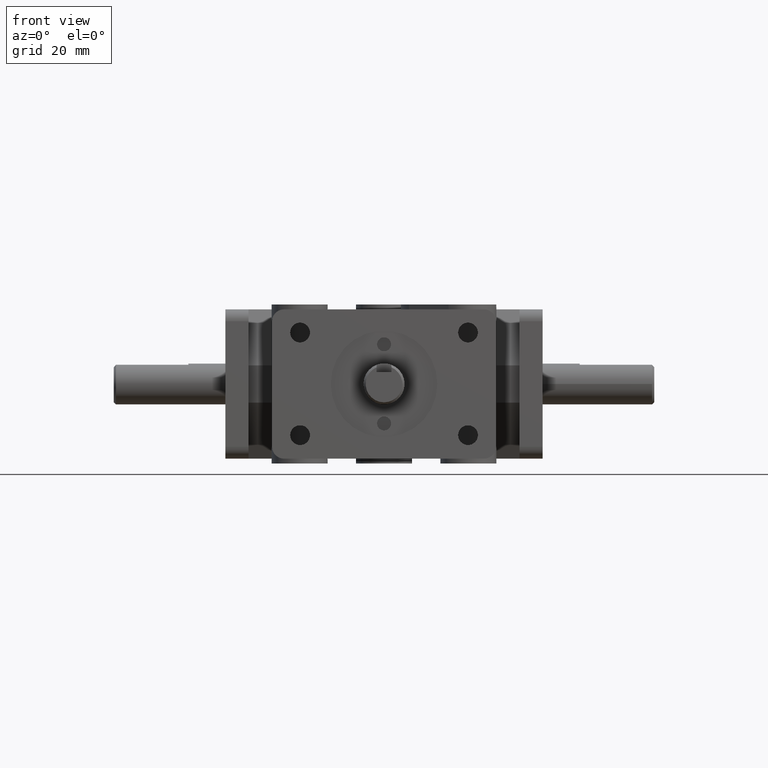
[diagram: clean part render]
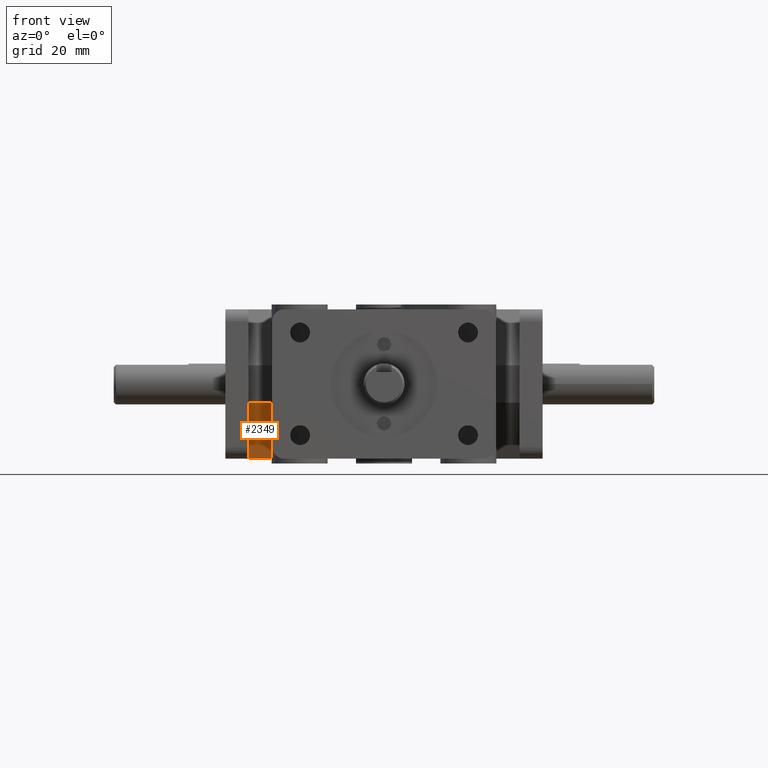
[diagram: same view with one face highlighted and labeled with its STEP entity id]
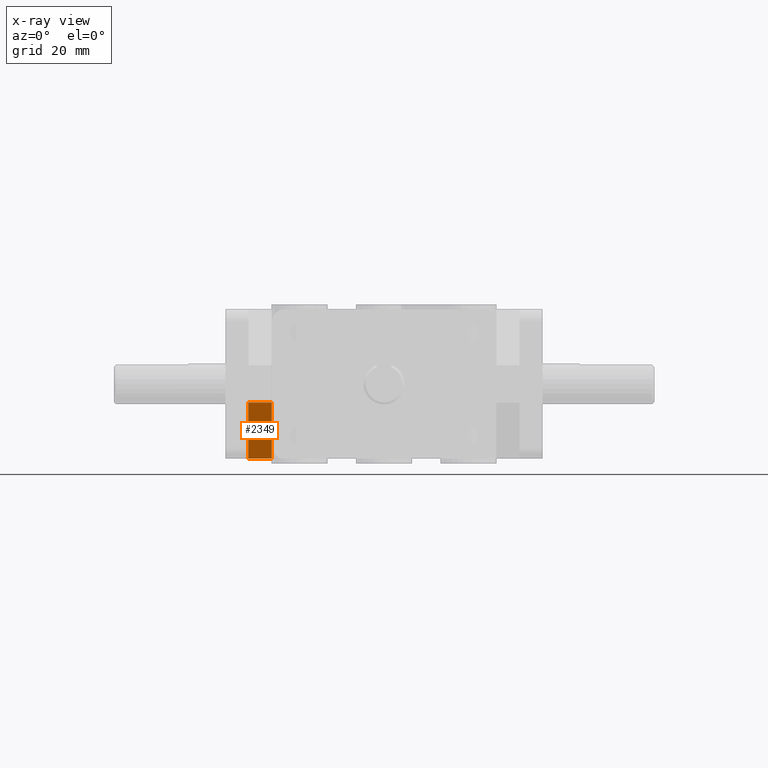
[diagram: x-ray of the same camera — body ghosted, the highlighted face saturated]
A machine part, front view. The second image highlights one B-rep face of the part: STEP entity #2349.
The next image is the same camera in x-ray: the body ghosted, the highlighted face saturated — about 0% of this face is hidden behind the body in this view.
In plain terms, the highlighted planar face has unit normal (0, -0.866, -0.5).
Its self-contained STEP definition (entity closure, byte-faithful):
#108=PLANE('',#2585);
#230=FACE_OUTER_BOUND('',#382,.T.);
#382=EDGE_LOOP('',(#1975,#1976,#1977,#1978));
#567=LINE('',#3761,#789);
#612=LINE('',#3885,#834);
#613=LINE('',#3887,#835);
#614=LINE('',#3888,#836);
#789=VECTOR('',#3030,1.);
#834=VECTOR('',#3157,1.);
#835=VECTOR('',#3158,1.);
#836=VECTOR('',#3159,1.);
#1153=VERTEX_POINT('',#3758);
#1154=VERTEX_POINT('',#3760);
#1192=VERTEX_POINT('',#3884);
#1193=VERTEX_POINT('',#3886);
#1419=EDGE_CURVE('',#1154,#1153,#567,.T.);
#1482=EDGE_CURVE('',#1192,#1154,#612,.F.);
#1483=EDGE_CURVE('',#1153,#1193,#613,.F.);
#1484=EDGE_CURVE('',#1193,#1192,#614,.T.);
#1975=ORIENTED_EDGE('',*,*,#1482,.T.);
#1976=ORIENTED_EDGE('',*,*,#1419,.T.);
#1977=ORIENTED_EDGE('',*,*,#1483,.T.);
#1978=ORIENTED_EDGE('',*,*,#1484,.T.);
#2349=ADVANCED_FACE('',(#230),#108,.T.);
#2585=AXIS2_PLACEMENT_3D('',#3883,#3155,#3156);
#3030=DIRECTION('',(1.,0.,0.));
#3155=DIRECTION('center_axis',(0.,-0.866025254730536,-0.500000258168844));
#3156=DIRECTION('ref_axis',(0.,-0.500000258168844,0.866025254730536));
#3157=DIRECTION('',(0.,-0.500000258168844,0.866025254730536));
#3158=DIRECTION('',(0.,0.500000258168844,-0.866025254730536));
#3159=DIRECTION('',(-1.,0.,0.));
#3758=CARTESIAN_POINT('',(-38.227,69.7360302,-25.4));
#3760=CARTESIAN_POINT('',(-46.101,69.7360302,-25.4));
#3761=CARTESIAN_POINT('',(-23.0505,69.7360302,-25.4));
#3883=CARTESIAN_POINT('Origin',(-23.0505,64.2367651,-15.875));
#3884=CARTESIAN_POINT('',(-46.101,58.7375,-6.35));
#3885=CARTESIAN_POINT('',(-46.101,58.3263774039523,-5.63791526574076));
#3886=CARTESIAN_POINT('',(-38.227,58.7375,-6.35));
#3887=CARTESIAN_POINT('',(-38.227,60.1123167482464,-8.73125081968629));
#3888=CARTESIAN_POINT('',(-23.0505,58.7375,-6.35));